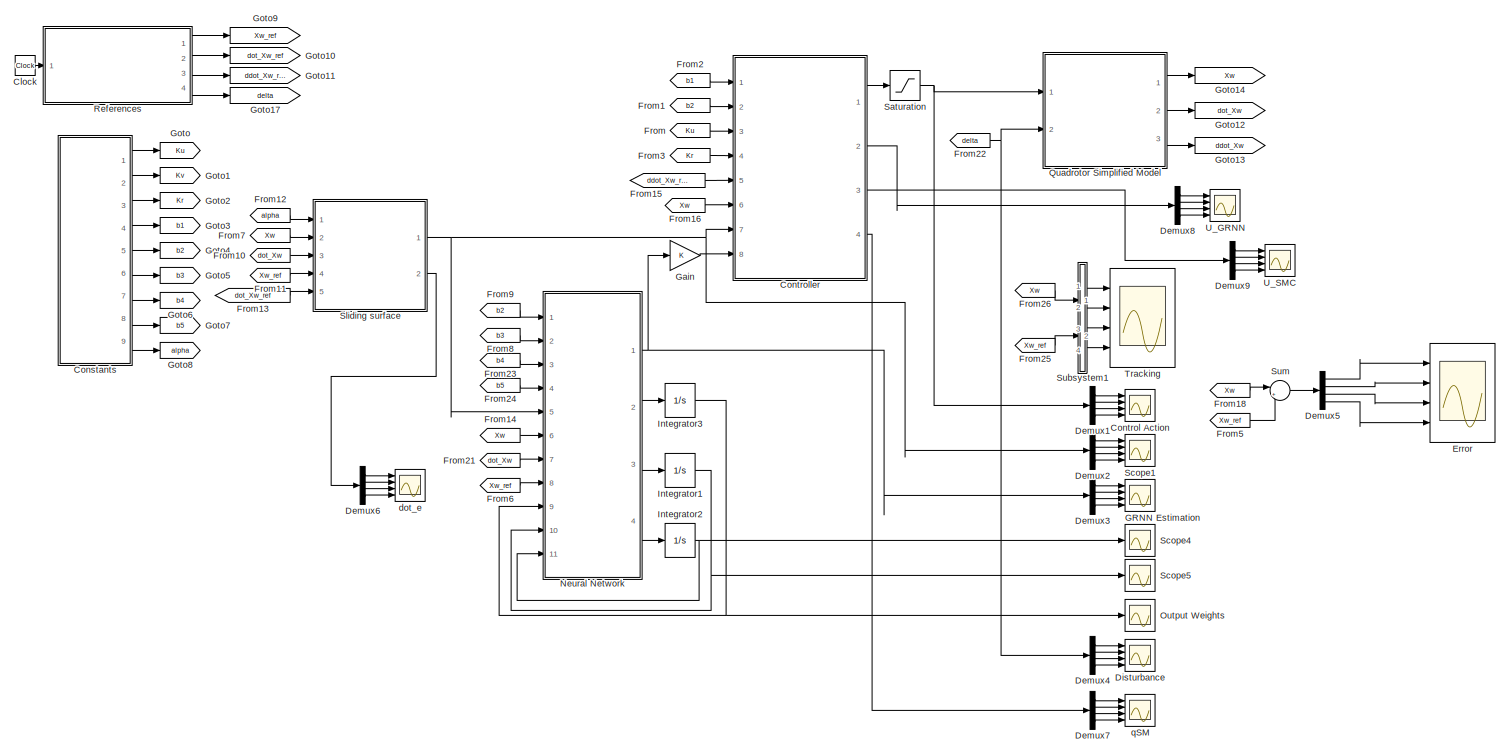
[diagram: root canvas - part 1/1, most of the canvas]
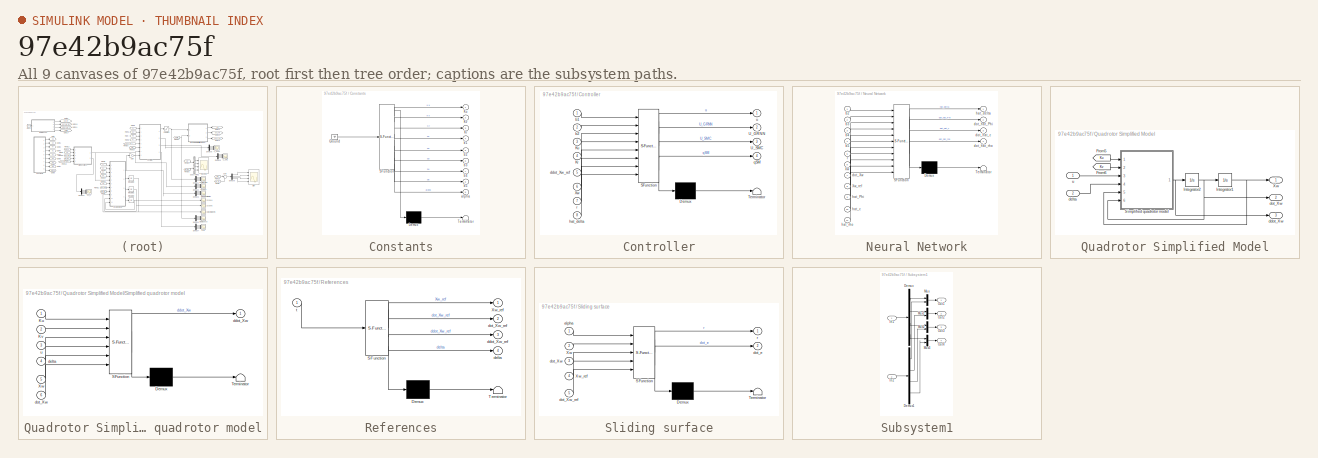
[diagram: thumbnail index - all 9 canvases of the model, root first then tree order]
MODEL slx_97e42b9ac75f
KIND model
CONFIG AbsTol = auto
CONFIG EnableMultiTasking = off
CONFIG FixedStep = 1e-2
CONFIG MaxStep = auto
CONFIG MinStep = auto
CONFIG RelTol = 1e-3
CONFIG SampleTimeConstraint = Unconstrained
CONFIG Solver = FixedStepAuto
CONFIG SolverName = FixedStepAuto
CONFIG StartTime = 0.0
CONFIG StopTime = 60
BLOCK [Clock] Clock
BLOCK [SubSystem] Constants
  ErrorFcn = Stateflow.Translate.translate
  PermitHierarchicalResolution = ExplicitOnly
  Ports = [0, 9]
  RequestExecContextInheritance = off
  SFBlockType = MATLAB Function
  TreatAsAtomicUnit = on
BLOCK [Demux] Constants/ Demux 
  Outputs = 1
  Ports = [1, 1]
BLOCK [Ground] Constants/ Ground 
BLOCK [S-Function] Constants/ SFunction 
  EnableBusSupport = on
  FunctionName = sf_sfun
  PortCounts = [1 10]
  Ports = [1, 10]
  SFcnIsStateOwnerBlock = off
  SFunctionDeploymentMode = off
  Tag = Stateflow S-Function 5
BLOCK [Terminator] Constants/ Terminator 
BLOCK [Outport] Constants/Kr
  IconDisplay = Port number
  Port = 3
  VectorParamsAs1DForOutWhenUnconnected = off
BLOCK [Outport] Constants/Ku
  IconDisplay = Port number
  VectorParamsAs1DForOutWhenUnconnected = off
BLOCK [Outport] Constants/Kv
  IconDisplay = Port number
  Port = 2
  VectorParamsAs1DForOutWhenUnconnected = off
BLOCK [Outport] Constants/alpha
  IconDisplay = Port number
  Port = 9
  VectorParamsAs1DForOutWhenUnconnected = off
BLOCK [Outport] Constants/b1
  IconDisplay = Port number
  Port = 4
  VectorParamsAs1DForOutWhenUnconnected = off
BLOCK [Outport] Constants/b2
  IconDisplay = Port number
  Port = 5
  VectorParamsAs1DForOutWhenUnconnected = off
BLOCK [Outport] Constants/b3
  IconDisplay = Port number
  Port = 6
  VectorParamsAs1DForOutWhenUnconnected = off
BLOCK [Outport] Constants/b4
  IconDisplay = Port number
  Port = 7
  VectorParamsAs1DForOutWhenUnconnected = off
BLOCK [Outport] Constants/b5
  IconDisplay = Port number
  Port = 8
  VectorParamsAs1DForOutWhenUnconnected = off
BLOCK [Scope] Control Action
  Floating = off
  NumInputPorts = 4
  Ports = [4]
  ScopeSpecificationString = Simulink.scopes.TimeScopeBlockCfg('CurrentConfiguration', extmgr.ConfigurationSet(extmgr.Configuration('Core','General UI',true),extmgr.Configuration('Core','Source UI',true),extmgr.Configuration('Sources','WiredSimulink',true,'DataLoggingVariableName','U','DataLogging',true,'DataLoggingSaveFormat','StructureWithTime'),extmgr.Configuration('Visuals','Time Domain',true,'SerializedDisplays',{struct(...<+3444ch>
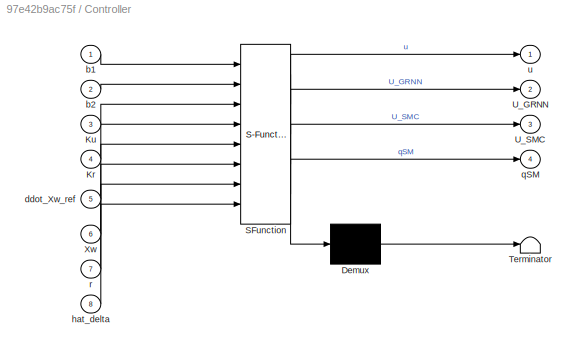
BLOCK [SubSystem] Controller
  ErrorFcn = Stateflow.Translate.translate
  PermitHierarchicalResolution = ExplicitOnly
  Ports = [8, 4]
  RequestExecContextInheritance = off
  SFBlockType = MATLAB Function
  TreatAsAtomicUnit = on
BLOCK [Demux] Controller/ Demux 
  Outputs = 1
  Ports = [1, 1]
BLOCK [S-Function] Controller/ SFunction 
  EnableBusSupport = on
  FunctionName = sf_sfun
  PortCounts = [8 5]
  Ports = [8, 5]
  SFcnIsStateOwnerBlock = off
  SFunctionDeploymentMode = off
  Tag = Stateflow S-Function 1
BLOCK [Terminator] Controller/ Terminator 
BLOCK [Inport] Controller/Kr
  IconDisplay = Port number
  Port = 4
BLOCK [Inport] Controller/Ku
  IconDisplay = Port number
  Port = 3
BLOCK [Outport] Controller/U_GRNN
  IconDisplay = Port number
  Port = 2
BLOCK [Outport] Controller/U_SMC
  IconDisplay = Port number
  Port = 3
BLOCK [Inport] Controller/Xw
  IconDisplay = Port number
  Port = 6
BLOCK [Inport] Controller/b1
  IconDisplay = Port number
BLOCK [Inport] Controller/b2
  IconDisplay = Port number
  Port = 2
BLOCK [Inport] Controller/ddot_Xw_ref
  IconDisplay = Port number
  Port = 5
BLOCK [Inport] Controller/hat_delta
  IconDisplay = Port number
  Port = 8
BLOCK [Outport] Controller/qSM
  IconDisplay = Port number
  Port = 4
BLOCK [Inport] Controller/r
  IconDisplay = Port number
  Port = 7
BLOCK [Outport] Controller/u
  IconDisplay = Port number
  VectorParamsAs1DForOutWhenUnconnected = off
BLOCK [Demux] Demux1
  DisplayOption = bar
  Ports = [1, 4]
BLOCK [Demux] Demux2
  DisplayOption = bar
  Ports = [1, 4]
BLOCK [Demux] Demux3
  DisplayOption = bar
  Ports = [1, 4]
BLOCK [Demux] Demux4
  DisplayOption = bar
  Ports = [1, 4]
BLOCK [Demux] Demux5
  DisplayOption = bar
  Ports = [1, 4]
BLOCK [Demux] Demux6
  DisplayOption = bar
  Ports = [1, 4]
BLOCK [Demux] Demux7
  DisplayOption = bar
  Ports = [1, 4]
BLOCK [Demux] Demux8
  DisplayOption = bar
  Ports = [1, 4]
BLOCK [Demux] Demux9
  DisplayOption = bar
  Ports = [1, 4]
BLOCK [Scope] Disturbance
  Floating = off
  NumInputPorts = 4
  Ports = [4]
  ScopeSpecificationString = Simulink.scopes.TimeScopeBlockCfg('CurrentConfiguration', extmgr.ConfigurationSet(extmgr.Configuration('Core','General UI',true),extmgr.Configuration('Core','Source UI',true),extmgr.Configuration('Sources','WiredSimulink',true,'DataLoggingVariableName','Disturbance','DataLogging',true,'DataLoggingSaveFormat','StructureWithTime'),extmgr.Configuration('Visuals','Time Domain',true,'SerializedDisplays...<+3440ch>
BLOCK [Scope] Error
  Floating = off
  NumInputPorts = 4
  Ports = [4]
  ScopeSpecificationString = Simulink.scopes.TimeScopeBlockCfg('CurrentConfiguration', extmgr.ConfigurationSet(extmgr.Configuration('Core','General UI',true),extmgr.Configuration('Core','Source UI',true),extmgr.Configuration('Sources','WiredSimulink',true,'DataLogging',true,'DataLoggingVariableName','ScopeData1','DataLoggingSaveFormat','StructureWithTime'),extmgr.Configuration('Visuals','Time Domain',true,'SerializedDisplays'...<+3427ch>
BLOCK [From] From
  GotoTag = Ku
  TagVisibility = global
BLOCK [From] From1
  GotoTag = b2
  TagVisibility = global
BLOCK [From] From10
  GotoTag = dot_Xw
  TagVisibility = global
BLOCK [From] From11
  GotoTag = Xw_ref
  TagVisibility = global
BLOCK [From] From12
  GotoTag = alpha
  TagVisibility = global
BLOCK [From] From13
  GotoTag = dot_Xw_ref
  TagVisibility = global
BLOCK [From] From14
  GotoTag = Xw
  TagVisibility = global
BLOCK [From] From15
  GotoTag = ddot_Xw_ref
  TagVisibility = global
BLOCK [From] From16
  GotoTag = Xw
  TagVisibility = global
BLOCK [From] From18
  GotoTag = Xw
  TagVisibility = global
BLOCK [From] From2
  GotoTag = b1
  TagVisibility = global
BLOCK [From] From21
  GotoTag = dot_Xw
  TagVisibility = global
BLOCK [From] From22
  GotoTag = delta
  TagVisibility = global
BLOCK [From] From23
  GotoTag = b4
  TagVisibility = global
BLOCK [From] From24
  GotoTag = b5
  TagVisibility = global
BLOCK [From] From25
  GotoTag = Xw_ref
  TagVisibility = global
BLOCK [From] From26
  GotoTag = Xw
  TagVisibility = global
BLOCK [From] From3
  GotoTag = Kr
  TagVisibility = global
BLOCK [From] From5
  GotoTag = Xw_ref
  TagVisibility = global
BLOCK [From] From6
  GotoTag = Xw_ref
  TagVisibility = global
BLOCK [From] From7
  GotoTag = Xw
  TagVisibility = global
BLOCK [From] From8
  GotoTag = b3
  TagVisibility = global
BLOCK [From] From9
  GotoTag = b2
  TagVisibility = global
BLOCK [Scope] GRNN Estimation
  Floating = off
  NumInputPorts = 4
  Ports = [4]
  ScopeSpecificationString = Simulink.scopes.TimeScopeBlockCfg('CurrentConfiguration', extmgr.ConfigurationSet(extmgr.Configuration('Core','General UI',true),extmgr.Configuration('Core','Source UI',true),extmgr.Configuration('Sources','WiredSimulink',true,'DataLoggingVariableName','GRNN_Estimation','DataLogging',true,'DataLoggingSaveFormat','StructureWithTime'),extmgr.Configuration('Visuals','Time Domain',true,'SerializedDisp...<+3447ch>
BLOCK [Gain] Gain
  OutDataTypeStr = Inherit: Inherit via internal rule
  ParamDataTypeStr = Inherit: Inherit via internal rule
  SaturateOnIntegerOverflow = off
BLOCK [Goto] Goto
  GotoTag = Ku
  TagVisibility = global
BLOCK [Goto] Goto1
  GotoTag = Kv
  TagVisibility = global
BLOCK [Goto] Goto10
  GotoTag = dot_Xw_ref
  TagVisibility = global
BLOCK [Goto] Goto11
  GotoTag = ddot_Xw_ref
  TagVisibility = global
BLOCK [Goto] Goto12
  GotoTag = dot_Xw
  TagVisibility = global
BLOCK [Goto] Goto13
  GotoTag = ddot_Xw
  TagVisibility = global
BLOCK [Goto] Goto14
  GotoTag = Xw
  TagVisibility = global
BLOCK [Goto] Goto17
  GotoTag = delta
  TagVisibility = global
BLOCK [Goto] Goto2
  GotoTag = Kr
  TagVisibility = global
BLOCK [Goto] Goto3
  GotoTag = b1
  TagVisibility = global
BLOCK [Goto] Goto4
  GotoTag = b2
  TagVisibility = global
BLOCK [Goto] Goto5
  GotoTag = b3
  TagVisibility = global
BLOCK [Goto] Goto6
  GotoTag = b4
  TagVisibility = global
BLOCK [Goto] Goto7
  GotoTag = b5
  TagVisibility = global
BLOCK [Goto] Goto8
  GotoTag = alpha
  TagVisibility = global
BLOCK [Goto] Goto9
  GotoTag = Xw_ref
  TagVisibility = global
BLOCK [Integrator] Integrator1
  InitialCondition = [0.6294\n    0.8116\n   -0.7460\n    0.8268\n    0.2647\n   -0.8049\n   -0.4430\n    0.0938\n    0.9150\n    0.9298\n   -0.6848\n    0.9412\n    0.9143\n   -0.0292\n    0.6006\n   -0.7162\n   -0.1565\n    0.8315\n    0.5844\n    0.9190\n    0.3115\n   -0.9286\n    0.6983\n    0.8680\n    0.3575\n    0.5155\n    0.4863\n   -0.2155\n    0.3110\n   -0.6576\n    0.4121\n   -0.9363\n   -0.4462\n   -0.9077\n   -0.8057\n    0.6469\n    0.3...<+1028ch>
  Ports = [1, 1]
BLOCK [Integrator] Integrator2
  InitialCondition = ones(10,1)
  Ports = [1, 1]
BLOCK [Integrator] Integrator3
  InitialCondition = [0.6628   -0.9690   -0.8946    0.3327;\n    0.6067    0.9681    0.4757    0.0783;\n   -0.8791   -0.6657   -0.4618    0.3962;\n   -0.2015   -0.7876   -0.1543    0.3331;\n    0.0538   -0.2552    0.0957   -0.6437;\n   -0.1664   -0.6038    0.8855   -0.7440;\n    0.3137   -0.0206   -0.1645    0.9982;\n    0.2559   -0.3210    0.9661   -0.6578;\n   -0.4160    0.9033   -0.3971   -0.9348;\n   -0.1367    0.8407    0...<+16ch>
  Ports = [1, 1]
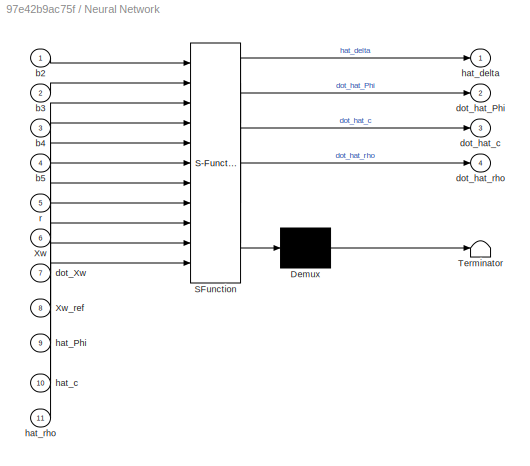
BLOCK [SubSystem] Neural Network
  ErrorFcn = Stateflow.Translate.translate
  PermitHierarchicalResolution = ExplicitOnly
  Ports = [11, 4]
  RequestExecContextInheritance = off
  SFBlockType = MATLAB Function
  TreatAsAtomicUnit = on
BLOCK [Demux] Neural Network/ Demux 
  Outputs = 1
  Ports = [1, 1]
BLOCK [S-Function] Neural Network/ SFunction 
  EnableBusSupport = on
  FunctionName = sf_sfun
  PortCounts = [11 5]
  Ports = [11, 5]
  SFcnIsStateOwnerBlock = off
  SFunctionDeploymentMode = off
  Tag = Stateflow S-Function 3
BLOCK [Terminator] Neural Network/ Terminator 
BLOCK [Inport] Neural Network/Xw
  IconDisplay = Port number
  Port = 6
BLOCK [Inport] Neural Network/Xw_ref
  IconDisplay = Port number
  Port = 8
BLOCK [Inport] Neural Network/b2
  IconDisplay = Port number
BLOCK [Inport] Neural Network/b3
  IconDisplay = Port number
  Port = 2
BLOCK [Inport] Neural Network/b4
  IconDisplay = Port number
  Port = 3
BLOCK [Inport] Neural Network/b5
  IconDisplay = Port number
  Port = 4
BLOCK [Inport] Neural Network/dot_Xw
  IconDisplay = Port number
  Port = 7
BLOCK [Outport] Neural Network/dot_hat_Phi
  IconDisplay = Port number
  Port = 2
  VectorParamsAs1DForOutWhenUnconnected = off
BLOCK [Outport] Neural Network/dot_hat_c
  IconDisplay = Port number
  Port = 3
  VectorParamsAs1DForOutWhenUnconnected = off
BLOCK [Outport] Neural Network/dot_hat_rho
  IconDisplay = Port number
  Port = 4
  VectorParamsAs1DForOutWhenUnconnected = off
BLOCK [Inport] Neural Network/hat_Phi
  IconDisplay = Port number
  Port = 9
BLOCK [Inport] Neural Network/hat_c
  IconDisplay = Port number
  Port = 10
BLOCK [Outport] Neural Network/hat_delta
  IconDisplay = Port number
  VectorParamsAs1DForOutWhenUnconnected = off
BLOCK [Inport] Neural Network/hat_rho
  IconDisplay = Port number
  Port = 11
BLOCK [Inport] Neural Network/r
  IconDisplay = Port number
  Port = 5
BLOCK [Scope] Output Weights
  Floating = off
  NumInputPorts = 1
  Ports = [1]
  ScopeSpecificationString = Simulink.scopes.TimeScopeBlockCfg('CurrentConfiguration', extmgr.ConfigurationSet(extmgr.Configuration('Core','General UI',true),extmgr.Configuration('Core','Source UI',true),extmgr.Configuration('Sources','WiredSimulink',true,'DataLoggingVariableName','Output_Weights','DataLogging',true,'DataLoggingSaveFormat','StructureWithTime'),extmgr.Configuration('Visuals','Time Domain',true,'SerializedDispl...<+2193ch>
BLOCK [SubSystem] Quadrotor Simplified Model
  Ports = [2, 3]
  RequestExecContextInheritance = off
BLOCK [From] Quadrotor Simplified Model/From5
  GotoTag = Ku
  TagVisibility = global
BLOCK [From] Quadrotor Simplified Model/From6
  GotoTag = Kv
  TagVisibility = global
BLOCK [Integrator] Quadrotor Simplified Model/Integrator1
  InitialCondition = [0;0;0;0]
  LimitOutput = on
  LowerSaturationLimit = [-inf;-inf;0;-inf]
  Ports = [1, 1]
  UpperSaturationLimit = [inf;inf;inf;inf]
BLOCK [Integrator] Quadrotor Simplified Model/Integrator2
  InitialCondition = [0;0;0;0]
  Ports = [1, 1]
BLOCK [SubSystem] Quadrotor Simplified Model/Simplified quadrotor model
  ErrorFcn = Stateflow.Translate.translate
  PermitHierarchicalResolution = ExplicitOnly
  Ports = [6, 1]
  RequestExecContextInheritance = off
  SFBlockType = MATLAB Function
  TreatAsAtomicUnit = on
BLOCK [Demux] Quadrotor Simplified Model/Simplified quadrotor model/ Demux 
  Outputs = 1
  Ports = [1, 1]
BLOCK [S-Function] Quadrotor Simplified Model/Simplified quadrotor model/ SFunction 
  EnableBusSupport = on
  FunctionName = sf_sfun
  PortCounts = [6 2]
  Ports = [6, 2]
  SFcnIsStateOwnerBlock = off
  SFunctionDeploymentMode = off
  Tag = Stateflow S-Function 2
BLOCK [Terminator] Quadrotor Simplified Model/Simplified quadrotor model/ Terminator 
BLOCK [Inport] Quadrotor Simplified Model/Simplified quadrotor model/Ku
  IconDisplay = Port number
BLOCK [Inport] Quadrotor Simplified Model/Simplified quadrotor model/Kv
  IconDisplay = Port number
  Port = 2
BLOCK [Inport] Quadrotor Simplified Model/Simplified quadrotor model/Xw
  IconDisplay = Port number
  Port = 5
BLOCK [Outport] Quadrotor Simplified Model/Simplified quadrotor model/ddot_Xw
  IconDisplay = Port number
  VectorParamsAs1DForOutWhenUnconnected = off
BLOCK [Inport] Quadrotor Simplified Model/Simplified quadrotor model/delta
  IconDisplay = Port number
  Port = 4
BLOCK [Inport] Quadrotor Simplified Model/Simplified quadrotor model/dot_Xw
  IconDisplay = Port number
  Port = 6
BLOCK [Inport] Quadrotor Simplified Model/Simplified quadrotor model/u
  IconDisplay = Port number
  Port = 3
BLOCK [Outport] Quadrotor Simplified Model/Xw
  IconDisplay = Port number
  VectorParamsAs1DForOutWhenUnconnected = off
BLOCK [Outport] Quadrotor Simplified Model/ddot_Xw
  IconDisplay = Port number
  Port = 3
  VectorParamsAs1DForOutWhenUnconnected = off
BLOCK [Inport] Quadrotor Simplified Model/delta
  IconDisplay = Port number
  Port = 2
BLOCK [Outport] Quadrotor Simplified Model/dot_Xw
  IconDisplay = Port number
  Port = 2
  VectorParamsAs1DForOutWhenUnconnected = off
BLOCK [Inport] Quadrotor Simplified Model/u
  IconDisplay = Port number
BLOCK [SubSystem] References
  ErrorFcn = Stateflow.Translate.translate
  PermitHierarchicalResolution = ExplicitOnly
  Ports = [1, 4]
  RequestExecContextInheritance = off
  SFBlockType = MATLAB Function
  TreatAsAtomicUnit = on
BLOCK [Demux] References/ Demux 
  Outputs = 1
  Ports = [1, 1]
BLOCK [S-Function] References/ SFunction 
  EnableBusSupport = on
  FunctionName = sf_sfun
  PortCounts = [1 5]
  Ports = [1, 5]
  SFcnIsStateOwnerBlock = off
  SFunctionDeploymentMode = off
  Tag = Stateflow S-Function 4
BLOCK [Terminator] References/ Terminator 
BLOCK [Outport] References/Xw_ref
  IconDisplay = Port number
  VectorParamsAs1DForOutWhenUnconnected = off
BLOCK [Outport] References/ddot_Xw_ref
  IconDisplay = Port number
  Port = 3
  VectorParamsAs1DForOutWhenUnconnected = off
BLOCK [Outport] References/delta
  IconDisplay = Port number
  Port = 4
BLOCK [Outport] References/dot_Xw_ref
  IconDisplay = Port number
  Port = 2
  VectorParamsAs1DForOutWhenUnconnected = off
BLOCK [Inport] References/t
  IconDisplay = Port number
BLOCK [Saturate] Saturation
  InputPortMap = u0
  LowerLimit = -1
  Ports = [1, 1]
  UpperLimit = 1
BLOCK [Scope] Scope1
  Floating = off
  NumInputPorts = 4
  Ports = [4]
  ScopeSpecificationString = Simulink.scopes.TimeScopeBlockCfg('CurrentConfiguration', extmgr.ConfigurationSet(extmgr.Configuration('Core','General UI',true),extmgr.Configuration('Core','Source UI',true),extmgr.Configuration('Sources','WiredSimulink',true,'DataLoggingVariableName','ScopeData2'),extmgr.Configuration('Visuals','Time Domain',true,'SerializedDisplays',{struct('MinYLimReal','-0.91332','MaxYLimReal','0.36588','YLab...<+3398ch>
BLOCK [Scope] Scope4
  Floating = off
  NumInputPorts = 1
  Ports = [1]
  ScopeSpecificationString = Simulink.scopes.TimeScopeBlockCfg('CurrentConfiguration', extmgr.ConfigurationSet(extmgr.Configuration('Core','General UI',true),extmgr.Configuration('Core','Source UI',true),extmgr.Configuration('Sources','WiredSimulink',true,'DataLoggingVariableName','ScopeData5'),extmgr.Configuration('Visuals','Time Domain',true,'SerializedDisplays',{struct('MinYLimReal','0.90185','MaxYLimReal','1.01128','YLabe...<+1453ch>
BLOCK [Scope] Scope5
  Floating = off
  NumInputPorts = 1
  Ports = [1]
  ScopeSpecificationString = Simulink.scopes.TimeScopeBlockCfg('CurrentConfiguration', extmgr.ConfigurationSet(extmgr.Configuration('Core','General UI',true),extmgr.Configuration('Core','Source UI',true),extmgr.Configuration('Sources','WiredSimulink',true,'DataLoggingVariableName','ScopeData6'),extmgr.Configuration('Visuals','Time Domain',true,'SerializedDisplays',{struct('MinYLimReal','-1.27569','MaxYLimReal','1.24452','YLab...<+3686ch>
BLOCK [SubSystem] Sliding surface
  ErrorFcn = Stateflow.Translate.translate
  PermitHierarchicalResolution = ExplicitOnly
  Ports = [5, 2]
  RequestExecContextInheritance = off
  SFBlockType = MATLAB Function
  TreatAsAtomicUnit = on
BLOCK [Demux] Sliding surface/ Demux 
  Outputs = 1
  Ports = [1, 1]
BLOCK [S-Function] Sliding surface/ SFunction 
  EnableBusSupport = on
  FunctionName = sf_sfun
  PortCounts = [5 3]
  Ports = [5, 3]
  SFcnIsStateOwnerBlock = off
  SFunctionDeploymentMode = off
  Tag = Stateflow S-Function 6
BLOCK [Terminator] Sliding surface/ Terminator 
BLOCK [Inport] Sliding surface/Xw
  IconDisplay = Port number
  Port = 2
BLOCK [Inport] Sliding surface/Xw_ref
  IconDisplay = Port number
  Port = 4
BLOCK [Inport] Sliding surface/alpha
  IconDisplay = Port number
BLOCK [Inport] Sliding surface/dot_Xw
  IconDisplay = Port number
  Port = 3
BLOCK [Inport] Sliding surface/dot_Xw_ref
  IconDisplay = Port number
  Port = 5
BLOCK [Outport] Sliding surface/dot_e
  IconDisplay = Port number
  Port = 2
BLOCK [Outport] Sliding surface/r
  IconDisplay = Port number
  VectorParamsAs1DForOutWhenUnconnected = off
BLOCK [SubSystem] Subsystem1
  Ports = [2, 4]
  RequestExecContextInheritance = off
BLOCK [Demux] Subsystem1/Demux
  DisplayOption = bar
  Ports = [1, 4]
BLOCK [Demux] Subsystem1/Demux1
  DisplayOption = bar
  Ports = [1, 4]
BLOCK [Inport] Subsystem1/In1
  IconDisplay = Port number
BLOCK [Inport] Subsystem1/In2
  IconDisplay = Port number
  Port = 2
BLOCK [Mux] Subsystem1/Mux
  DisplayOption = bar
  Inputs = 2
  Ports = [2, 1]
BLOCK [Mux] Subsystem1/Mux1
  DisplayOption = bar
  Inputs = 2
  Ports = [2, 1]
BLOCK [Mux] Subsystem1/Mux2
  DisplayOption = bar
  Inputs = 2
  Ports = [2, 1]
BLOCK [Mux] Subsystem1/Mux3
  DisplayOption = bar
  Inputs = 2
  Ports = [2, 1]
BLOCK [Outport] Subsystem1/Out1
  IconDisplay = Port number
  VectorParamsAs1DForOutWhenUnconnected = off
BLOCK [Outport] Subsystem1/Out2
  IconDisplay = Port number
  Port = 2
  VectorParamsAs1DForOutWhenUnconnected = off
BLOCK [Outport] Subsystem1/Out3
  IconDisplay = Port number
  Port = 3
  VectorParamsAs1DForOutWhenUnconnected = off
BLOCK [Outport] Subsystem1/Out4
  IconDisplay = Port number
  Port = 4
  VectorParamsAs1DForOutWhenUnconnected = off
BLOCK [Sum] Sum
  IconShape = round
  InputSameDT = off
  Inputs = |+-
  OutDataTypeStr = Inherit: Inherit via internal rule
  Ports = [2, 1]
  SaturateOnIntegerOverflow = off
BLOCK [Scope] Tracking
  Floating = off
  NumInputPorts = 4
  Ports = [4]
  ScopeSpecificationString = Simulink.scopes.TimeScopeBlockCfg('CurrentConfiguration', extmgr.ConfigurationSet(extmgr.Configuration('Core','General UI',true),extmgr.Configuration('Core','Source UI',true),extmgr.Configuration('Sources','WiredSimulink',true,'DataLogging',true,'DataLoggingVariableName','Xw','DataLoggingSaveFormat','StructureWithTime'),extmgr.Configuration('Visuals','Time Domain',true,'SerializedDisplays',{struct...<+3419ch>
BLOCK [Scope] U_GRNN
  Floating = off
  NumInputPorts = 4
  Ports = [4]
  ScopeSpecificationString = Simulink.scopes.TimeScopeBlockCfg('CurrentConfiguration', extmgr.ConfigurationSet(extmgr.Configuration('Core','General UI',true),extmgr.Configuration('Core','Source UI',true),extmgr.Configuration('Sources','WiredSimulink',true,'DataLoggingVariableName','U_GRNN','DataLogging',true,'DataLoggingSaveFormat','StructureWithTime'),extmgr.Configuration('Visuals','Time Domain',true,'SerializedDisplays',{st...<+3455ch>
BLOCK [Scope] U_SMC
  Floating = off
  NumInputPorts = 4
  Ports = [4]
  ScopeSpecificationString = Simulink.scopes.TimeScopeBlockCfg('CurrentConfiguration', extmgr.ConfigurationSet(extmgr.Configuration('Core','General UI',true),extmgr.Configuration('Core','Source UI',true),extmgr.Configuration('Sources','WiredSimulink',true,'DataLoggingVariableName','U_SMC','DataLogging',true,'DataLoggingSaveFormat','StructureWithTime'),extmgr.Configuration('Visuals','Time Domain',true,'SerializedDisplays',{str...<+3454ch>
BLOCK [Scope] dot_e
  Floating = off
  NumInputPorts = 4
  Ports = [4]
  ScopeSpecificationString = Simulink.scopes.TimeScopeBlockCfg('CurrentConfiguration', extmgr.ConfigurationSet(extmgr.Configuration('Core','General UI',true),extmgr.Configuration('Core','Source UI',true),extmgr.Configuration('Sources','WiredSimulink',true,'DataLoggingVariableName','dot_e','DataLogging',true,'DataLoggingSaveFormat','StructureWithTime'),extmgr.Configuration('Visuals','Time Domain',true,'SerializedDisplays',{str...<+3434ch>
BLOCK [Scope] qSM
  Floating = off
  NumInputPorts = 4
  Ports = [4]
  ScopeSpecificationString = Simulink.scopes.TimeScopeBlockCfg('CurrentConfiguration', extmgr.ConfigurationSet(extmgr.Configuration('Core','General UI',true),extmgr.Configuration('Core','Source UI',true),extmgr.Configuration('Sources','WiredSimulink',true,'DataLoggingVariableName','ScopeData2','DataLogging',true,'DataLoggingSaveFormat','StructureWithTime'),extmgr.Configuration('Visuals','Time Domain',true,'SerializedDisplays'...<+3434ch>
LINE Clock:1 -> References:1
LINE Constants:1 -> Goto:1
LINE Constants:2 -> Goto1:1
LINE Constants:3 -> Goto2:1
LINE Constants:4 -> Goto3:1
LINE Constants:5 -> Goto4:1
LINE Constants:6 -> Goto5:1
LINE Constants:7 -> Goto6:1
LINE Constants:8 -> Goto7:1
LINE Constants:9 -> Goto8:1
LINE Controller:1 -> Saturation:1
LINE Controller:2 -> Demux8:1
LINE Controller:3 -> Demux9:1
LINE Controller:4 -> Demux7:1
LINE Demux1:1 -> Control Action:1
LINE Demux1:2 -> Control Action:2
LINE Demux1:3 -> Control Action:3
LINE Demux1:4 -> Control Action:4
LINE Demux2:1 -> Scope1:1
LINE Demux2:2 -> Scope1:2
LINE Demux2:3 -> Scope1:3
LINE Demux2:4 -> Scope1:4
LINE Demux3:1 -> GRNN Estimation:1
LINE Demux3:2 -> GRNN Estimation:2
LINE Demux3:3 -> GRNN Estimation:3
LINE Demux3:4 -> GRNN Estimation:4
LINE Demux4:1 -> Disturbance:1
LINE Demux4:2 -> Disturbance:2
LINE Demux4:3 -> Disturbance:3
LINE Demux4:4 -> Disturbance:4
LINE Demux5:1 -> Error:1
LINE Demux5:2 -> Error:2
LINE Demux5:3 -> Error:3
LINE Demux5:4 -> Error:4
LINE Demux6:1 -> dot_e:1
LINE Demux6:2 -> dot_e:2
LINE Demux6:3 -> dot_e:3
LINE Demux6:4 -> dot_e:4
LINE Demux7:1 -> qSM:1
LINE Demux7:2 -> qSM:2
LINE Demux7:3 -> qSM:3
LINE Demux7:4 -> qSM:4
LINE Demux8:1 -> U_GRNN:1
LINE Demux8:2 -> U_GRNN:2
LINE Demux8:3 -> U_GRNN:3
LINE Demux8:4 -> U_GRNN:4
LINE Demux9:1 -> U_SMC:1
LINE Demux9:2 -> U_SMC:2
LINE Demux9:3 -> U_SMC:3
LINE Demux9:4 -> U_SMC:4
LINE From10:1 -> Sliding surface:3
LINE From11:1 -> Sliding surface:4
LINE From12:1 -> Sliding surface:1
LINE From13:1 -> Sliding surface:5
LINE From14:1 -> Neural Network:6
LINE From15:1 -> Controller:5
LINE From16:1 -> Controller:6
LINE From18:1 -> Sum:1
LINE From1:1 -> Controller:2
LINE From21:1 -> Neural Network:7
NET From22:1 -> Demux4:1, Quadrotor Simplified Model:2
LINE From23:1 -> Neural Network:3
LINE From24:1 -> Neural Network:4
LINE From25:1 -> Subsystem1:2
LINE From26:1 -> Subsystem1:1
LINE From2:1 -> Controller:1
LINE From3:1 -> Controller:4
LINE From5:1 -> Sum:2
LINE From6:1 -> Neural Network:8
LINE From7:1 -> Sliding surface:2
LINE From8:1 -> Neural Network:2
LINE From9:1 -> Neural Network:1
LINE From:1 -> Controller:3
LINE Gain:1 -> Controller:8
NET Integrator1:1 -> Neural Network:10, Scope5:1
NET Integrator2:1 -> Neural Network:11, Scope4:1
NET Integrator3:1 -> Neural Network:9, Output Weights:1
NET Neural Network:1 -> Demux3:1, Gain:1
LINE Neural Network:2 -> Integrator3:1
LINE Neural Network:3 -> Integrator1:1
LINE Neural Network:4 -> Integrator2:1
LINE Quadrotor Simplified Model/From5:1 -> Quadrotor Simplified Model/Simplified quadrotor model:1
LINE Quadrotor Simplified Model/From6:1 -> Quadrotor Simplified Model/Simplified quadrotor model:2
NET Quadrotor Simplified Model/Integrator1:1 -> Quadrotor Simplified Model/Simplified quadrotor model:5, Quadrotor Simplified Model/Xw:1
NET Quadrotor Simplified Model/Integrator2:1 -> Quadrotor Simplified Model/Integrator1:1, Quadrotor Simplified Model/Simplified quadrotor model:6, Quadrotor Simplified Model/dot_Xw:1
NET Quadrotor Simplified Model/Simplified quadrotor model:1 -> Quadrotor Simplified Model/Integrator2:1, Quadrotor Simplified Model/ddot_Xw:1
LINE Quadrotor Simplified Model/delta:1 -> Quadrotor Simplified Model/Simplified quadrotor model:4
LINE Quadrotor Simplified Model/u:1 -> Quadrotor Simplified Model/Simplified quadrotor model:3
LINE Quadrotor Simplified Model:1 -> Goto14:1
LINE Quadrotor Simplified Model:2 -> Goto12:1
LINE Quadrotor Simplified Model:3 -> Goto13:1
LINE References:1 -> Goto9:1
LINE References:2 -> Goto10:1
LINE References:3 -> Goto11:1
LINE References:4 -> Goto17:1
NET Saturation:1 -> Demux1:1, Quadrotor Simplified Model:1
NET Sliding surface:1 -> Controller:7, Demux2:1, Neural Network:5
LINE Sliding surface:2 -> Demux6:1
LINE Subsystem1/Demux1:1 -> Subsystem1/Mux:2
LINE Subsystem1/Demux1:2 -> Subsystem1/Mux1:2
LINE Subsystem1/Demux1:3 -> Subsystem1/Mux2:2
LINE Subsystem1/Demux1:4 -> Subsystem1/Mux3:2
LINE Subsystem1/Demux:1 -> Subsystem1/Mux:1
LINE Subsystem1/Demux:2 -> Subsystem1/Mux1:1
LINE Subsystem1/Demux:3 -> Subsystem1/Mux2:1
LINE Subsystem1/Demux:4 -> Subsystem1/Mux3:1
LINE Subsystem1/In1:1 -> Subsystem1/Demux:1
LINE Subsystem1/In2:1 -> Subsystem1/Demux1:1
LINE Subsystem1/Mux1:1 -> Subsystem1/Out2:1
LINE Subsystem1/Mux2:1 -> Subsystem1/Out3:1
LINE Subsystem1/Mux3:1 -> Subsystem1/Out4:1
LINE Subsystem1/Mux:1 -> Subsystem1/Out1:1
LINE Subsystem1:1 -> Tracking:1
LINE Subsystem1:2 -> Tracking:2
LINE Subsystem1:3 -> Tracking:3
LINE Subsystem1:4 -> Tracking:4
LINE Sum:1 -> Demux5:1
note: NET lines group one-source signal fan-out (src -> all destinations, sorted); 1:1 wires keep LINE
CHART Controller states=1 transitions=1
  STATE_LABEL 'eML_blk_kernel()'
  STATE_LABEL 'SCRIPT:\nfunction [u,U_GRNN,U_SMC,qSM] = fcn(b1,b2,Ku,Kr,ddot_Xw_ref,Xw,r,hat_delta)\n\npsi = Xw(4);\n\nR = [cos(psi)  sin(psi)  0  0;\n     sin(psi)  -cos(psi)  0  0;\n     0          0         1  0;\n     0          0         0  1];\n\nU = (R*Ku)\\(ddot_Xw_ref - b1*tanh(b2*r) - hat_delta - Kr*sign(r));\nU_GRNN = (R*Ku)\\(- hat_delta);\nU_SMC = (R*Ku)\\(ddot_Xw_ref - b1*tanh(b2*r) - Kr*sign(r));\nqSM = b1*tanh(b...<+102ch>'
CHART Quadrotor Simplified Model/Simplified quadrotor model states=1 transitions=1
  STATE_LABEL 'eML_blk_kernel()'
  STATE_LABEL 'SCRIPT:\nfunction ddot_Xw = fcn(Ku,Kv,u,delta,Xw,dot_Xw)\n\npsi = Xw(4);\n\nR = [cos(psi)  sin(psi)  0  0;\n     sin(psi)  -cos(psi)  0  0;\n     0          0         1  0;\n     0          0         0  1];\n\nddot_Xw = R*Ku*u - Kv*dot_Xw + delta;'
CHART Neural Network states=1 transitions=1
  STATE_LABEL 'eML_blk_kernel()'
  STATE_LABEL 'SCRIPT:\nfunction [hat_delta,dot_hat_Phi,dot_hat_c,dot_hat_rho] = fcn(b2,b3,b4,b5,r,Xw,dot_Xw,Xw_ref,hat_Phi,hat_c,hat_rho)\n\ne = Xw - Xw_ref;\nbar_r = [1;e;r;dot_Xw]; % Extended Input Vector\n\n% Neural network constants\nm   = 10; % Neurons Quantity\nE   = numel(bar_r); % Input Quantity of the Neural Network\nn   = 4; % Output Quantity of the Neural Network\n% rho = ones(m,1); % Variance Vector\n\n% -1 + (...<+2389ch>'
CHART References states=1 transitions=1
  STATE_LABEL 'eML_blk_kernel()'
  STATE_LABEL 'SCRIPT:\nfunction [Xw_ref,dot_Xw_ref,ddot_Xw_ref,delta]= fn(t)\n\nxamp = 0.5;\nyamp = 1.0;\nzamp = 0.4;\nxfr = 2*pi/4;\nyfr = 2*pi/8;\nzfr = 2*pi/4;\n\nx_ref   = xamp*sin(xfr*t);\ny_ref   = yamp*cos(yfr*t);\nz_ref   = 1.0 + zamp*sin(zfr*t);\npsi_ref = 0.0;\n\ndot_x_ref   = xamp*xfr*cos(xfr*t);\ndot_y_ref   = -yamp*yfr*sin(yfr*t);\ndot_z_ref   = zamp*zfr*cos(zfr*t);\ndot_psi_ref = 0.0;\n\nddot_x_ref   = -xamp*xfr^2*si...<+472ch>'
CHART Constants states=1 transitions=1
  STATE_LABEL 'eML_blk_kernel()'
  STATE_LABEL 'SCRIPT:\nfunction [Ku,Kv,Kr,b1,b2,b3,b4,b5,alpha] = fcn()\n\n% Model parameters\nKu = diag([4.72;6.23;2.65;2.38]);\nKv = diag([0.28;0.53;2.58;1.52]);\n\n% Controller gains\nKr = 0.001*diag([1;1;1;1]);\n\n% Saturation function coeff\nb1 = 0.75;\nb2 = 30;\n% Neural Network Constants\nb3 = 1*26; % Neural Network gain\nb4 = 0.8; % Mean vector adaptation gain\nb5 = 0.8; % Variance vector adaptation gain\n\n% Sliding sur...<+48ch>'
CHART Sliding surface states=1 transitions=1
  STATE_LABEL 'eML_blk_kernel()'
  STATE_LABEL 'SCRIPT:\nfunction [r,dot_e]  = fcn(alpha,Xw,dot_Xw,Xw_ref,dot_Xw_ref)\n\ne      = Xw - Xw_ref;\ndot_e  = dot_Xw - dot_Xw_ref;\nr      = dot_e + alpha*e;'
